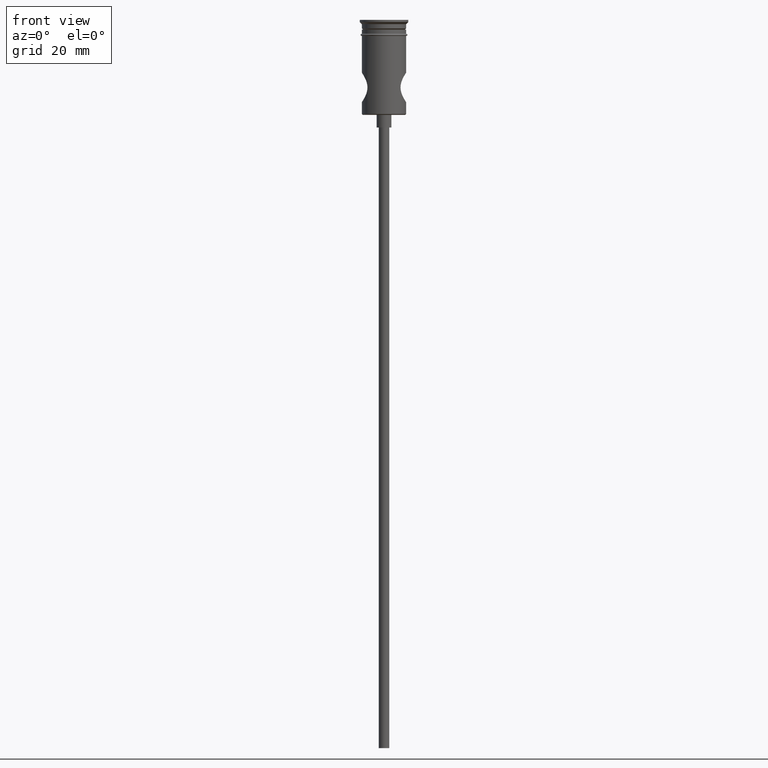
[diagram: clean part render]
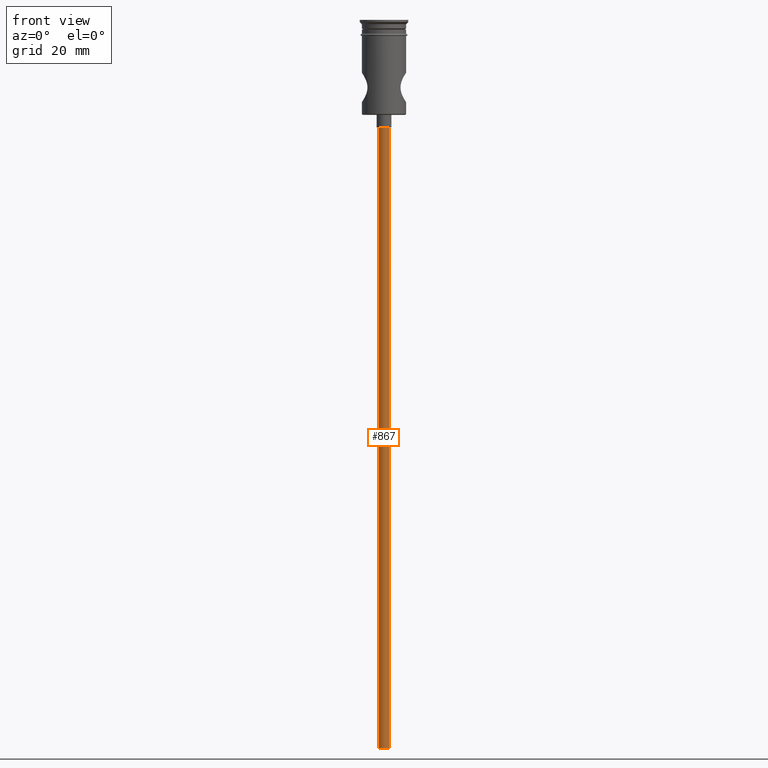
[diagram: same view with one face highlighted and labeled with its STEP entity id]
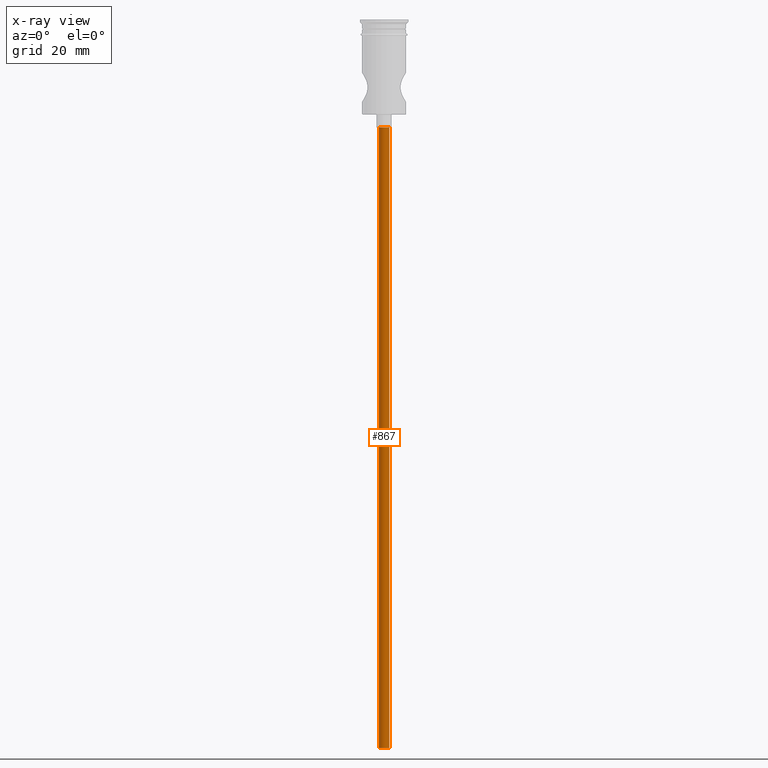
[diagram: x-ray of the same camera — body ghosted, the highlighted face saturated]
A machine part, front view. The second image highlights one B-rep face of the part: STEP entity #867.
The next image is the same camera in x-ray: the body ghosted, the highlighted face saturated — about 0% of this face is hidden behind the body in this view.
In plain terms, the highlighted cylindrical surface (edge-blend (fillet) strip) has radius 1.25 mm, axis along (-0, -0, 1).
Its self-contained STEP definition (entity closure, byte-faithful):
#31 = CIRCLE ( 'NONE', #984, 1.250000000000000000 ) ;
#56 = CARTESIAN_POINT ( 'NONE',  ( 0.000000000000000000, 0.000000000000000000, -172.5000000000000000 ) ) ;
#74 = FACE_OUTER_BOUND ( 'NONE', #895, .T. ) ;
#194 = EDGE_CURVE ( 'NONE', #812, #1113, #825, .T. ) ;
#255 = CARTESIAN_POINT ( 'NONE',  ( -1.250000000000000000, 1.530808498934191571E-16, -172.5000000000000000 ) ) ;
#256 = LINE ( 'NONE', #593, #782 ) ;
#389 = CYLINDRICAL_SURFACE ( 'NONE', #1273, 1.250000000000000000 ) ;
#397 = AXIS2_PLACEMENT_3D ( 'NONE', #430, #1341, #983 ) ;
#426 = ORIENTED_EDGE ( 'NONE', *, *, #194, .T. ) ;
#430 = CARTESIAN_POINT ( 'NONE',  ( 0.000000000000000000, 0.000000000000000000, -25.50000000000000000 ) ) ;
#454 = VERTEX_POINT ( 'NONE', #1278 ) ;
#494 = DIRECTION ( 'NONE',  ( 0.000000000000000000, 0.000000000000000000, -1.000000000000000000 ) ) ;
#542 = VECTOR ( 'NONE', #675, 1000.000000000000000 ) ;
#549 = ORIENTED_EDGE ( 'NONE', *, *, #586, .F. ) ;
#552 = CARTESIAN_POINT ( 'NONE',  ( -1.250000000000000000, 1.530808498934191571E-16, -172.5000000000000000 ) ) ;
#586 = EDGE_CURVE ( 'NONE', #1309, #1113, #796, .T. ) ;
#593 = CARTESIAN_POINT ( 'NONE',  ( 1.250000000000000000, 0.000000000000000000, -172.5000000000000000 ) ) ;
#622 = CARTESIAN_POINT ( 'NONE',  ( 0.000000000000000000, 0.000000000000000000, -172.5000000000000000 ) ) ;
#659 = ORIENTED_EDGE ( 'NONE', *, *, #730, .F. ) ;
#675 = DIRECTION ( 'NONE',  ( -0.000000000000000000, -0.000000000000000000, 1.000000000000000000 ) ) ;
#720 = CARTESIAN_POINT ( 'NONE',  ( 1.250000000000000000, 0.000000000000000000, -25.50000000000000000 ) ) ;
#723 = DIRECTION ( 'NONE',  ( -0.000000000000000000, -0.000000000000000000, 1.000000000000000000 ) ) ;
#730 = EDGE_CURVE ( 'NONE', #454, #1309, #31, .T. ) ;
#782 = VECTOR ( 'NONE', #723, 1000.000000000000000 ) ;
#796 = LINE ( 'NONE', #552, #542 ) ;
#812 = VERTEX_POINT ( 'NONE', #720 ) ;
#825 = CIRCLE ( 'NONE', #397, 1.250000000000000000 ) ;
#842 = DIRECTION ( 'NONE',  ( -0.000000000000000000, -0.000000000000000000, 1.000000000000000000 ) ) ;
#867 = ADVANCED_FACE ( 'NONE', ( #74 ), #389, .T. ) ;
#895 = EDGE_LOOP ( 'NONE', ( #549, #659, #1052, #426 ) ) ;
#983 = DIRECTION ( 'NONE',  ( -1.000000000000000000, 0.000000000000000000, 0.000000000000000000 ) ) ;
#984 = AXIS2_PLACEMENT_3D ( 'NONE', #56, #494, #1252 ) ;
#1019 = CARTESIAN_POINT ( 'NONE',  ( -1.250000000000000000, 1.530808498934191571E-16, -25.50000000000000000 ) ) ;
#1052 = ORIENTED_EDGE ( 'NONE', *, *, #1094, .T. ) ;
#1062 = DIRECTION ( 'NONE',  ( 1.000000000000000000, 0.000000000000000000, 0.000000000000000000 ) ) ;
#1094 = EDGE_CURVE ( 'NONE', #454, #812, #256, .T. ) ;
#1113 = VERTEX_POINT ( 'NONE', #1019 ) ;
#1252 = DIRECTION ( 'NONE',  ( -1.000000000000000000, 0.000000000000000000, 0.000000000000000000 ) ) ;
#1273 = AXIS2_PLACEMENT_3D ( 'NONE', #622, #842, #1062 ) ;
#1278 = CARTESIAN_POINT ( 'NONE',  ( 1.250000000000000000, 0.000000000000000000, -172.5000000000000000 ) ) ;
#1309 = VERTEX_POINT ( 'NONE', #255 ) ;
#1341 = DIRECTION ( 'NONE',  ( 0.000000000000000000, 0.000000000000000000, -1.000000000000000000 ) ) ;